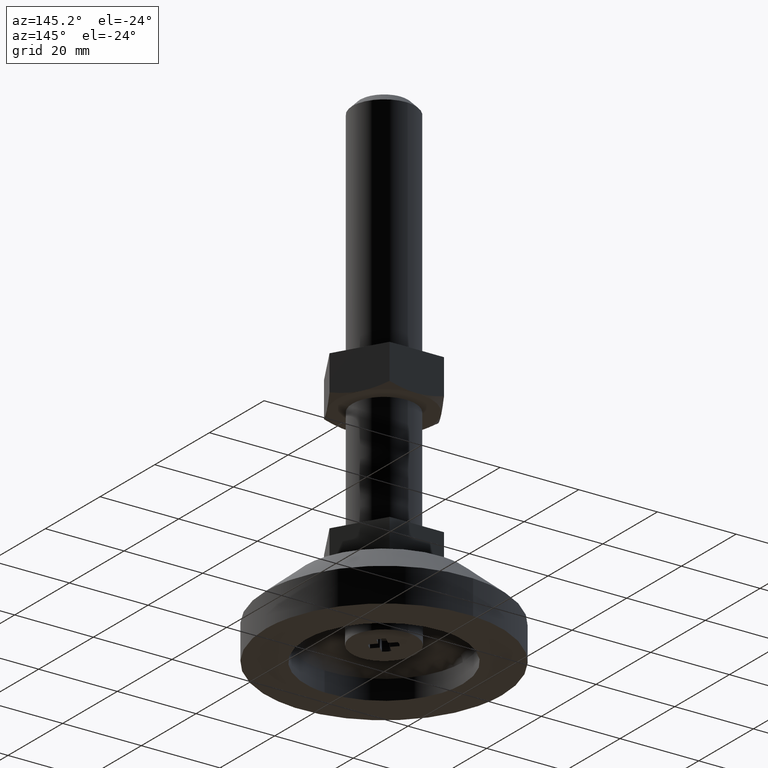
[diagram: clean part render]
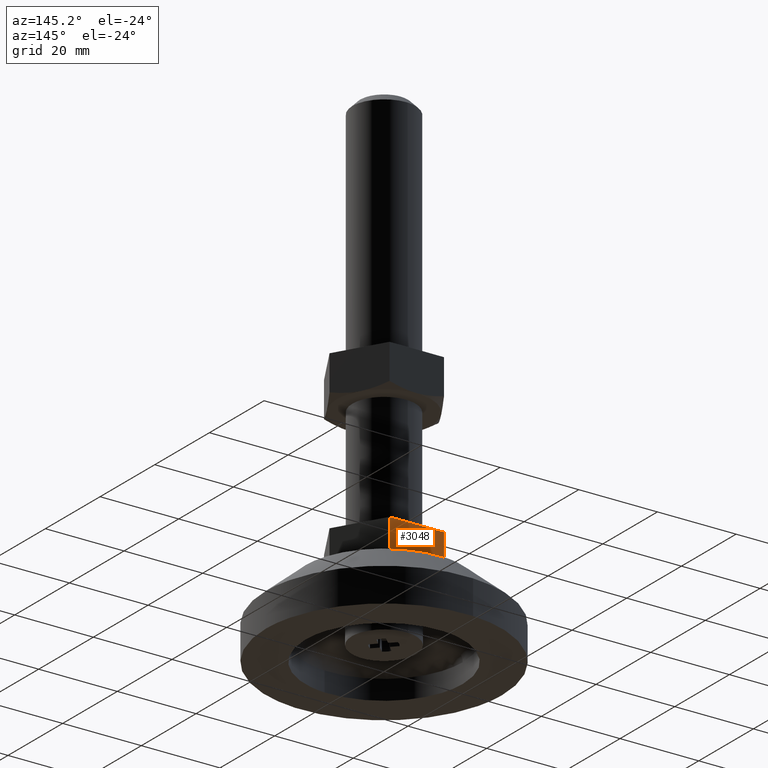
[diagram: same view with one face highlighted and labeled with its STEP entity id]
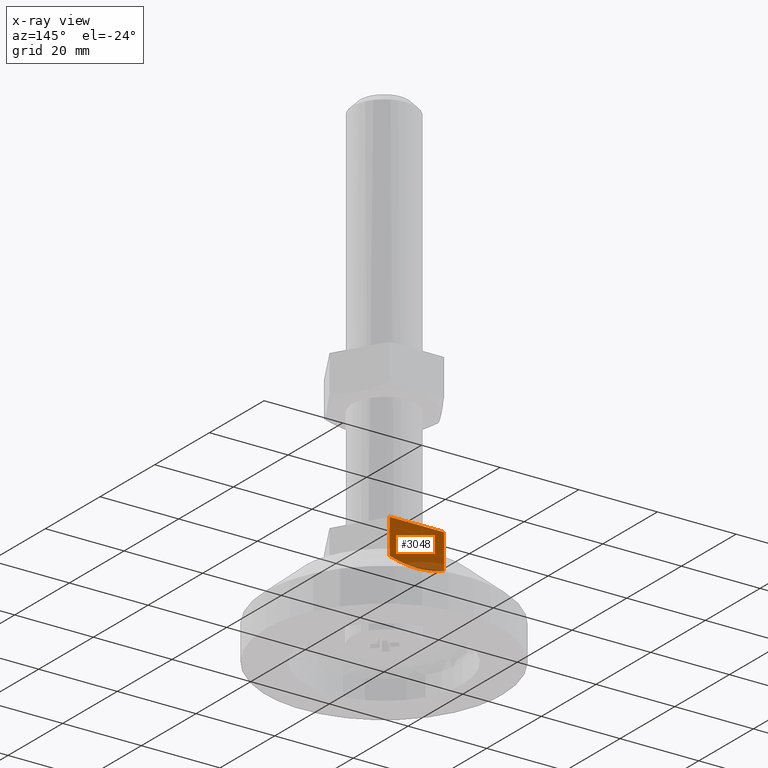
[diagram: x-ray of the same camera — body ghosted, the highlighted face saturated]
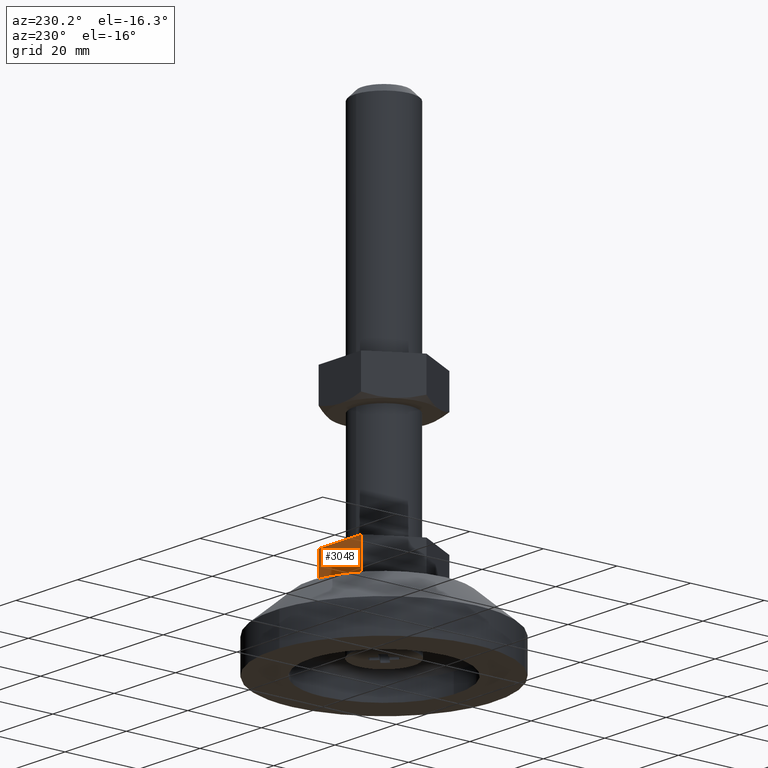
[diagram: same view with one face highlighted and labeled with its STEP entity id]
A machine part, auxiliary view. The second image highlights one B-rep face of the part: STEP entity #3048.
The next image is the same camera in x-ray: the body ghosted, the highlighted face saturated — about 11% of this face is hidden behind the body in this view.
A second angle (auxiliary view) of the same face is appended — the face is thin or edge-on in the first view.
In plain terms, the highlighted face is a freeform B-spline surface patch.
Its self-contained STEP definition (entity closure, byte-faithful):
#2758=CARTESIAN_POINT('',(6.921797000000001,12.0,27.0));
#2759=VERTEX_POINT('',#2758);
#2760=CARTESIAN_POINT('',(-6.921797000000001,12.0,27.0));
#2761=VERTEX_POINT('',#2760);
#2762=CARTESIAN_POINT('',(6.921797000000001,12.0,27.0));
#2763=CARTESIAN_POINT('',(-6.921797000000001,12.0,27.0));
#2764=QUASI_UNIFORM_CURVE('',1,(#2762,#2763),.UNSPECIFIED.,.F.,.U.);
#2765=EDGE_CURVE('',#2759,#2761,#2764,.T.);
#2814=CARTESIAN_POINT('',(6.921797000000001,12.0,18.073646796981102));
#2815=VERTEX_POINT('',#2814);
#2837=CARTESIAN_POINT('',(6.921797000000001,12.0,27.0));
#2838=CARTESIAN_POINT('',(6.921797000000001,12.0,18.073646796981102));
#2839=QUASI_UNIFORM_CURVE('',1,(#2837,#2838),.UNSPECIFIED.,.F.,.U.);
#2840=EDGE_CURVE('',#2759,#2815,#2839,.T.);
#2978=CARTESIAN_POINT('',(-6.921797000000001,12.0,18.073646796981102));
#2979=VERTEX_POINT('',#2978);
#3008=CARTESIAN_POINT('',(-6.921797000000001,12.0,27.0));
#3009=CARTESIAN_POINT('',(-6.921797000000001,12.0,18.073646796981102));
#3010=QUASI_UNIFORM_CURVE('',1,(#3008,#3009),.UNSPECIFIED.,.F.,.U.);
#3011=EDGE_CURVE('',#2761,#2979,#3010,.T.);
#3016=CARTESIAN_POINT('',(-7.613284493468429,12.0,27.499315230271911));
#3017=CARTESIAN_POINT('',(-7.613284493468429,12.0,16.504383207378609));
#3018=CARTESIAN_POINT('',(7.613284864782555,12.0,27.499315230271911));
#3019=CARTESIAN_POINT('',(7.613284864782555,12.0,16.504383207378609));
#3020=B_SPLINE_SURFACE_WITH_KNOTS('',1,1,((#3016,#3018),(#3017,#3019)),.UNSPECIFIED.,.F.,.F.,.U.,(2,2),(2,2),(0.0,10.994932022893300),(0.0,15.226569358250989),.UNSPECIFIED.);
#3021=CARTESIAN_POINT('',(-6.921797000000001,12.0,18.073646796981102));
#3022=CARTESIAN_POINT('',(-6.358660324426976,12.0,17.911196017434531));
#3023=CARTESIAN_POINT('',(-5.790343191297215,12.0,17.762066278652121));
#3024=CARTESIAN_POINT('',(-4.640615515414147,12.0,17.497475225435291));
#3025=CARTESIAN_POINT('',(-4.064224947717325,12.0,17.383251962031011));
#3026=CARTESIAN_POINT('',(-2.908357873238041,12.0,17.197071511113521));
#3027=CARTESIAN_POINT('',(-2.328807218985752,12.0,17.125138279335339));
#3028=CARTESIAN_POINT('',(-1.166103339210498,12.0,17.028404816675710));
#3029=CARTESIAN_POINT('',(-0.582947442430045,12.0,17.003639534271969));
#3030=CARTESIAN_POINT('',(0.587159239858373,12.0,17.003758089595170));
#3031=CARTESIAN_POINT('',(1.174110774181518,12.0,17.028651724187711));
#3032=CARTESIAN_POINT('',(1.910142876343362,12.0,17.090418470358049));
#3033=CARTESIAN_POINT('',(2.057339841839589,12.0,17.104289639084961));
#3034=CARTESIAN_POINT('',(2.350644054811812,12.0,17.134879830849091));
#3035=CARTESIAN_POINT('',(2.789433234024576,12.0,17.185073760166500));
#3036=CARTESIAN_POINT('',(3.224847049230180,12.0,17.247728260586531));
#3037=CARTESIAN_POINT('',(4.669317161794012,12.0,17.482083020122730));
#3038=CARTESIAN_POINT('',(5.802870978181923,12.0,17.750864757764390));
#3039=CARTESIAN_POINT('',(6.921797000000025,12.0,18.073646796981009));
#3040=B_SPLINE_CURVE_WITH_KNOTS('',3,(#3021,#3022,#3023,#3024,#3025,#3026,#3027,#3028,#3029,#3030,#3031,#3032,#3033,#3034,#3035,#3036,#3037,#3038,#3039),.UNSPECIFIED.,.F.,.U.,(4,2,2,2,2,2,2,1,2,4),(0.0,0.125000000000000,0.250000000000000,0.375000000000000,0.500000000000000,0.625000000000000,0.656250000000000,0.687500000000000,0.750000000000000,1.0),.UNSPECIFIED.);
#3041=EDGE_CURVE('',#2979,#2815,#3040,.T.);
#3042=ORIENTED_EDGE('',*,*,#3041,.F.);
#3043=ORIENTED_EDGE('',*,*,#3011,.F.);
#3044=ORIENTED_EDGE('',*,*,#2765,.F.);
#3045=ORIENTED_EDGE('',*,*,#2840,.T.);
#3046=EDGE_LOOP('',(#3042,#3043,#3044,#3045));
#3047=FACE_OUTER_BOUND('',#3046,.T.);
#3048=ADVANCED_FACE('',(#3047),#3020,.F.);